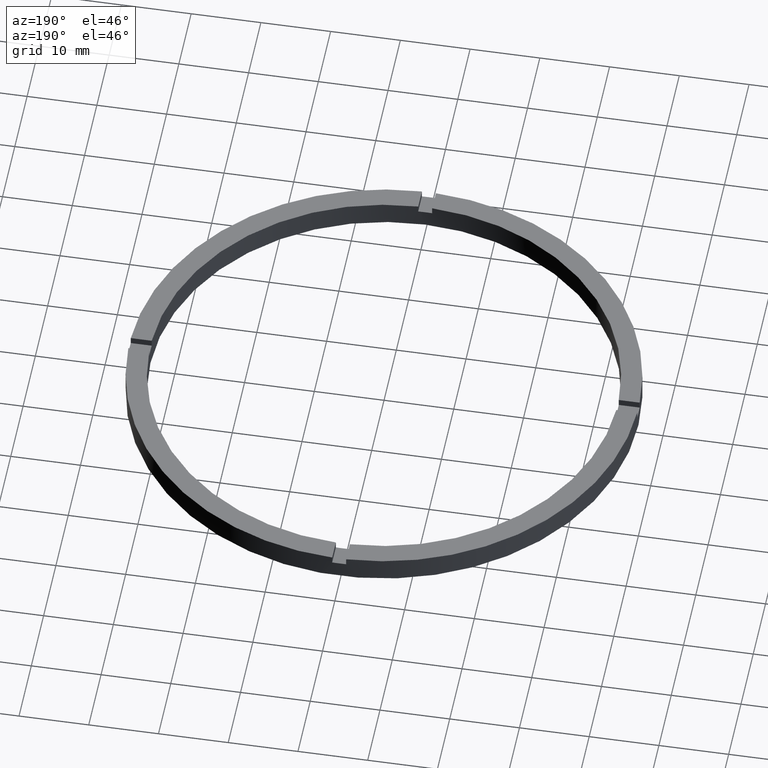
[diagram: clean part render]
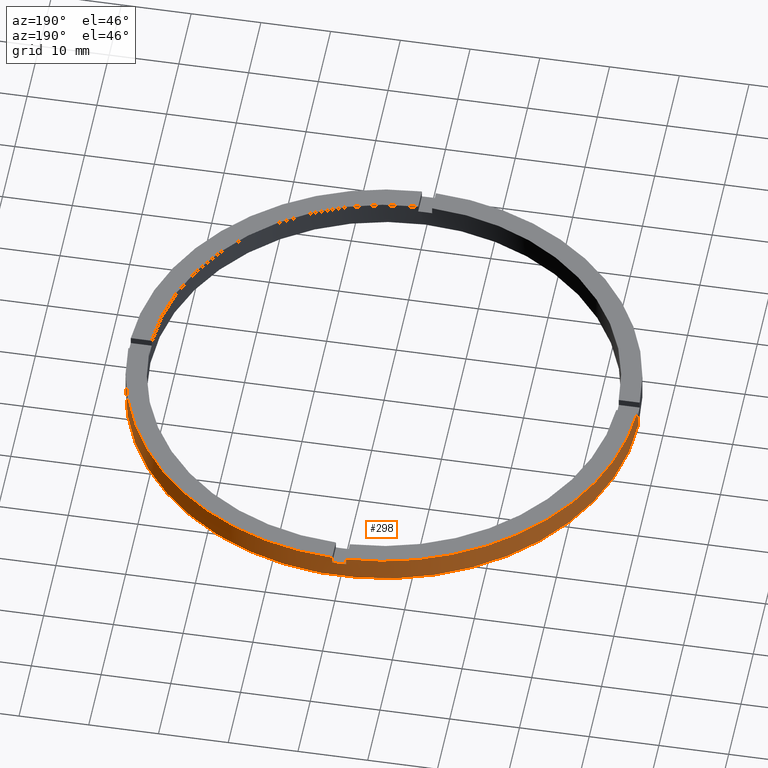
[diagram: same view with one face highlighted and labeled with its STEP entity id]
A machine part, auxiliary view. The second image highlights one B-rep face of the part: STEP entity #298.
In plain terms, the highlighted cylindrical surface (partial cylindrical patch) has radius 36.5 mm, axis along (-0, -0, -1).
Its self-contained STEP definition (entity closure, byte-faithful):
#2 = CARTESIAN_POINT ( 'NONE',  ( -36.48629879831605649, 0.9999999999999726885, 3.500000000000000000 ) ) ;
#6 = CIRCLE ( 'NONE', #705, 36.50000000000000000 ) ;
#10 = LINE ( 'NONE', #521, #272 ) ;
#13 = AXIS2_PLACEMENT_3D ( 'NONE', #753, #520, #267 ) ;
#14 = CARTESIAN_POINT ( 'NONE',  ( 36.50000000000000000, 4.469960816887838430E-15, 0.000000000000000000 ) ) ;
#27 = DIRECTION ( 'NONE',  ( 1.000000000000000000, 0.000000000000000000, 0.000000000000000000 ) ) ;
#28 = LINE ( 'NONE', #430, #42 ) ;
#40 = EDGE_CURVE ( 'NONE', #311, #677, #362, .T. ) ;
#42 = VECTOR ( 'NONE', #572, 1000.000000000000000 ) ;
#43 = AXIS2_PLACEMENT_3D ( 'NONE', #764, #467, #259 ) ;
#44 = EDGE_CURVE ( 'NONE', #498, #137, #640, .T. ) ;
#56 = ORIENTED_EDGE ( 'NONE', *, *, #638, .F. ) ;
#58 = ORIENTED_EDGE ( 'NONE', *, *, #532, .T. ) ;
#70 = VERTEX_POINT ( 'NONE', #358 ) ;
#76 = AXIS2_PLACEMENT_3D ( 'NONE', #186, #611, #234 ) ;
#77 = DIRECTION ( 'NONE',  ( -0.000000000000000000, -0.000000000000000000, -1.000000000000000000 ) ) ;
#95 = CIRCLE ( 'NONE', #702, 36.50000000000000000 ) ;
#96 = VERTEX_POINT ( 'NONE', #419 ) ;
#98 = EDGE_CURVE ( 'NONE', #137, #380, #120, .T. ) ;
#115 = VECTOR ( 'NONE', #174, 1000.000000000000000 ) ;
#118 = VECTOR ( 'NONE', #515, 1000.000000000000000 ) ;
#120 = CIRCLE ( 'NONE', #43, 36.50000000000000000 ) ;
#125 = VERTEX_POINT ( 'NONE', #667 ) ;
#130 = ORIENTED_EDGE ( 'NONE', *, *, #516, .F. ) ;
#133 = CARTESIAN_POINT ( 'NONE',  ( 0.000000000000000000, 0.000000000000000000, 2.500000000000000000 ) ) ;
#137 = VERTEX_POINT ( 'NONE', #14 ) ;
#144 = ORIENTED_EDGE ( 'NONE', *, *, #44, .T. ) ;
#148 = EDGE_CURVE ( 'NONE', #96, #586, #356, .T. ) ;
#157 = CARTESIAN_POINT ( 'NONE',  ( -36.50000000000000000, 0.000000000000000000, 0.000000000000000000 ) ) ;
#158 = ORIENTED_EDGE ( 'NONE', *, *, #254, .T. ) ;
#174 = DIRECTION ( 'NONE',  ( 0.000000000000000000, 0.000000000000000000, 1.000000000000000000 ) ) ;
#182 = DIRECTION ( 'NONE',  ( 1.000000000000000000, 0.000000000000000000, 0.000000000000000000 ) ) ;
#186 = CARTESIAN_POINT ( 'NONE',  ( 0.000000000000000000, 0.000000000000000000, 2.500000000000000000 ) ) ;
#191 = CARTESIAN_POINT ( 'NONE',  ( 0.9999999999999749090, 36.48629879831605649, 3.500000000000000000 ) ) ;
#193 = CARTESIAN_POINT ( 'NONE',  ( 0.9999999999999749090, 36.48629879831605649, 2.500000000000000000 ) ) ;
#200 = EDGE_CURVE ( 'NONE', #650, #380, #28, .T. ) ;
#217 = CARTESIAN_POINT ( 'NONE',  ( 0.000000000000000000, 0.000000000000000000, 3.500000000000000000 ) ) ;
#220 = DIRECTION ( 'NONE',  ( -0.000000000000000000, -0.000000000000000000, -1.000000000000000000 ) ) ;
#225 = CARTESIAN_POINT ( 'NONE',  ( 0.9999999999999749090, 36.48629879831605649, 3.500000000000000000 ) ) ;
#227 = DIRECTION ( 'NONE',  ( -0.000000000000000000, -0.000000000000000000, -1.000000000000000000 ) ) ;
#229 = DIRECTION ( 'NONE',  ( 0.000000000000000000, 0.000000000000000000, 1.000000000000000000 ) ) ;
#234 = DIRECTION ( 'NONE',  ( 1.000000000000000000, 0.000000000000000000, 0.000000000000000000 ) ) ;
#240 = CARTESIAN_POINT ( 'NONE',  ( 0.000000000000000000, 0.000000000000000000, 3.500000000000000000 ) ) ;
#245 = VERTEX_POINT ( 'NONE', #250 ) ;
#250 = CARTESIAN_POINT ( 'NONE',  ( -1.000000000000025091, 36.48629879831605649, 3.500000000000000000 ) ) ;
#254 = EDGE_CURVE ( 'NONE', #245, #70, #294, .T. ) ;
#259 = DIRECTION ( 'NONE',  ( 1.000000000000000000, 0.000000000000000000, 0.000000000000000000 ) ) ;
#267 = DIRECTION ( 'NONE',  ( 1.000000000000000000, 0.000000000000000000, 0.000000000000000000 ) ) ;
#269 = CIRCLE ( 'NONE', #479, 36.50000000000000000 ) ;
#272 = VECTOR ( 'NONE', #220, 1000.000000000000000 ) ;
#290 = CYLINDRICAL_SURFACE ( 'NONE', #504, 36.50000000000000000 ) ;
#294 = LINE ( 'NONE', #368, #536 ) ;
#298 = ADVANCED_FACE ( 'NONE', ( #547 ), #290, .T. ) ;
#305 = ORIENTED_EDGE ( 'NONE', *, *, #148, .T. ) ;
#311 = VERTEX_POINT ( 'NONE', #193 ) ;
#323 = ORIENTED_EDGE ( 'NONE', *, *, #708, .F. ) ;
#333 = DIRECTION ( 'NONE',  ( 0.000000000000000000, 0.000000000000000000, 1.000000000000000000 ) ) ;
#336 = ORIENTED_EDGE ( 'NONE', *, *, #719, .F. ) ;
#344 = CARTESIAN_POINT ( 'NONE',  ( -36.50000000000000000, 0.000000000000000000, 2.500000000000000000 ) ) ;
#345 = CIRCLE ( 'NONE', #13, 36.50000000000000000 ) ;
#356 = LINE ( 'NONE', #458, #118 ) ;
#357 = VECTOR ( 'NONE', #227, 1000.000000000000000 ) ;
#358 = CARTESIAN_POINT ( 'NONE',  ( -1.000000000000025091, 36.48629879831605649, 2.500000000000000000 ) ) ;
#362 = LINE ( 'NONE', #191, #115 ) ;
#368 = CARTESIAN_POINT ( 'NONE',  ( -1.000000000000025091, 36.48629879831605649, 3.500000000000000000 ) ) ;
#380 = VERTEX_POINT ( 'NONE', #157 ) ;
#382 = EDGE_LOOP ( 'NONE', ( #130, #144, #496, #388, #676, #305, #323, #158, #336, #427, #56, #58 ) ) ;
#388 = ORIENTED_EDGE ( 'NONE', *, *, #200, .F. ) ;
#390 = DIRECTION ( 'NONE',  ( -1.000000000000000000, 0.000000000000000000, 0.000000000000000000 ) ) ;
#419 = CARTESIAN_POINT ( 'NONE',  ( -36.48629879831605649, 0.9999999999999726885, 2.500000000000000000 ) ) ;
#427 = ORIENTED_EDGE ( 'NONE', *, *, #40, .T. ) ;
#430 = CARTESIAN_POINT ( 'NONE',  ( -36.50000000000000000, 0.000000000000000000, 3.500000000000000000 ) ) ;
#444 = DIRECTION ( 'NONE',  ( -0.000000000000000000, -0.000000000000000000, -1.000000000000000000 ) ) ;
#445 = DIRECTION ( 'NONE',  ( 0.000000000000000000, 0.000000000000000000, 1.000000000000000000 ) ) ;
#446 = CARTESIAN_POINT ( 'NONE',  ( 36.48629879831606360, 0.9999999999998423483, 2.500000000000000000 ) ) ;
#458 = CARTESIAN_POINT ( 'NONE',  ( -36.48629879831605649, 0.9999999999999726885, 3.500000000000000000 ) ) ;
#467 = DIRECTION ( 'NONE',  ( 0.000000000000000000, 0.000000000000000000, 1.000000000000000000 ) ) ;
#479 = AXIS2_PLACEMENT_3D ( 'NONE', #696, #229, #182 ) ;
#496 = ORIENTED_EDGE ( 'NONE', *, *, #98, .T. ) ;
#498 = VERTEX_POINT ( 'NONE', #699 ) ;
#504 = AXIS2_PLACEMENT_3D ( 'NONE', #240, #77, #390 ) ;
#515 = DIRECTION ( 'NONE',  ( 0.000000000000000000, 0.000000000000000000, 1.000000000000000000 ) ) ;
#516 = EDGE_CURVE ( 'NONE', #498, #721, #6, .T. ) ;
#520 = DIRECTION ( 'NONE',  ( 0.000000000000000000, 0.000000000000000000, 1.000000000000000000 ) ) ;
#521 = CARTESIAN_POINT ( 'NONE',  ( 36.48629879831606360, 0.9999999999998423483, 3.500000000000000000 ) ) ;
#530 = EDGE_CURVE ( 'NONE', #96, #650, #269, .T. ) ;
#532 = EDGE_CURVE ( 'NONE', #125, #721, #10, .T. ) ;
#536 = VECTOR ( 'NONE', #444, 1000.000000000000000 ) ;
#547 = FACE_OUTER_BOUND ( 'NONE', #382, .T. ) ;
#572 = DIRECTION ( 'NONE',  ( -0.000000000000000000, -0.000000000000000000, -1.000000000000000000 ) ) ;
#586 = VERTEX_POINT ( 'NONE', #2 ) ;
#608 = DIRECTION ( 'NONE',  ( 1.000000000000000000, 0.000000000000000000, 0.000000000000000000 ) ) ;
#611 = DIRECTION ( 'NONE',  ( 0.000000000000000000, -0.000000000000000000, 1.000000000000000000 ) ) ;
#638 = EDGE_CURVE ( 'NONE', #125, #677, #95, .T. ) ;
#639 = CIRCLE ( 'NONE', #76, 36.50000000000000000 ) ;
#640 = LINE ( 'NONE', #714, #357 ) ;
#650 = VERTEX_POINT ( 'NONE', #344 ) ;
#667 = CARTESIAN_POINT ( 'NONE',  ( 36.48629879831606360, 0.9999999999998423483, 3.500000000000000000 ) ) ;
#676 = ORIENTED_EDGE ( 'NONE', *, *, #530, .F. ) ;
#677 = VERTEX_POINT ( 'NONE', #225 ) ;
#696 = CARTESIAN_POINT ( 'NONE',  ( 0.000000000000000000, 0.000000000000000000, 2.500000000000000000 ) ) ;
#699 = CARTESIAN_POINT ( 'NONE',  ( 36.50000000000000000, 4.469960816887838430E-15, 2.500000000000000000 ) ) ;
#702 = AXIS2_PLACEMENT_3D ( 'NONE', #217, #333, #27 ) ;
#705 = AXIS2_PLACEMENT_3D ( 'NONE', #133, #445, #608 ) ;
#708 = EDGE_CURVE ( 'NONE', #245, #586, #345, .T. ) ;
#714 = CARTESIAN_POINT ( 'NONE',  ( 36.50000000000000000, 4.469960816887838430E-15, 3.500000000000000000 ) ) ;
#719 = EDGE_CURVE ( 'NONE', #311, #70, #639, .T. ) ;
#721 = VERTEX_POINT ( 'NONE', #446 ) ;
#753 = CARTESIAN_POINT ( 'NONE',  ( 0.000000000000000000, 0.000000000000000000, 3.500000000000000000 ) ) ;
#764 = CARTESIAN_POINT ( 'NONE',  ( 0.000000000000000000, 0.000000000000000000, 0.000000000000000000 ) ) ;